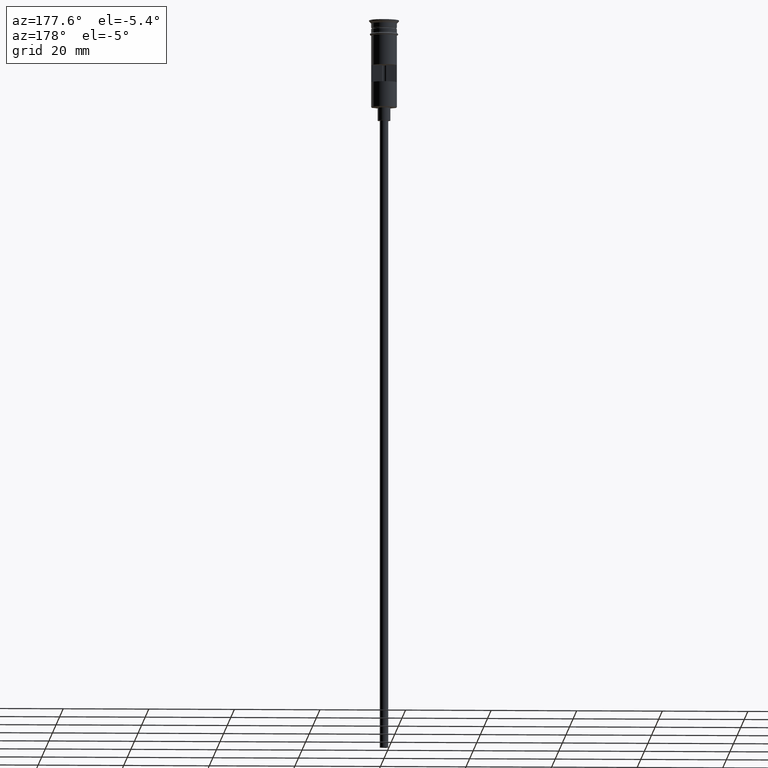
[diagram: clean part render]
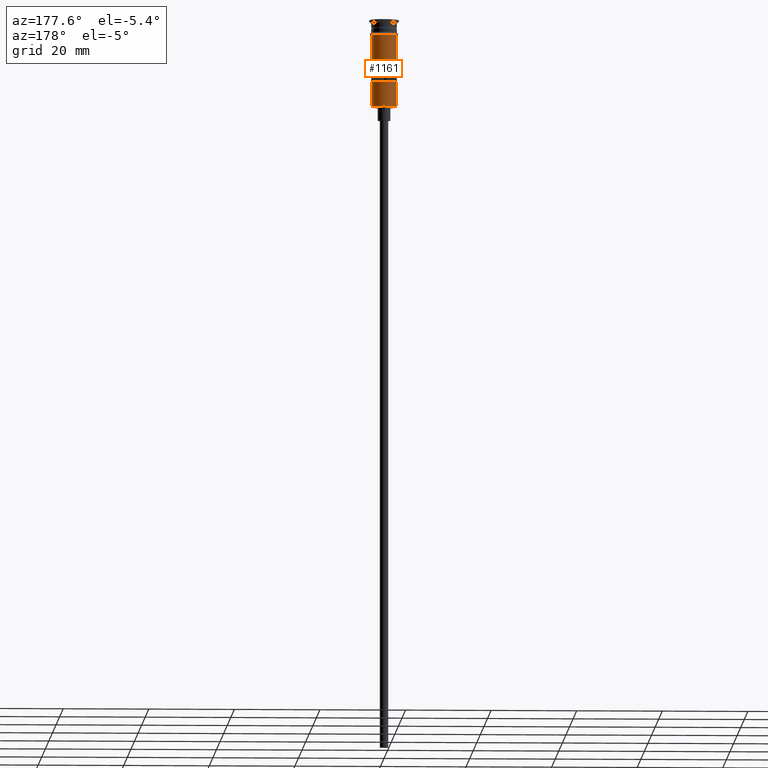
[diagram: same view with one face highlighted and labeled with its STEP entity id]
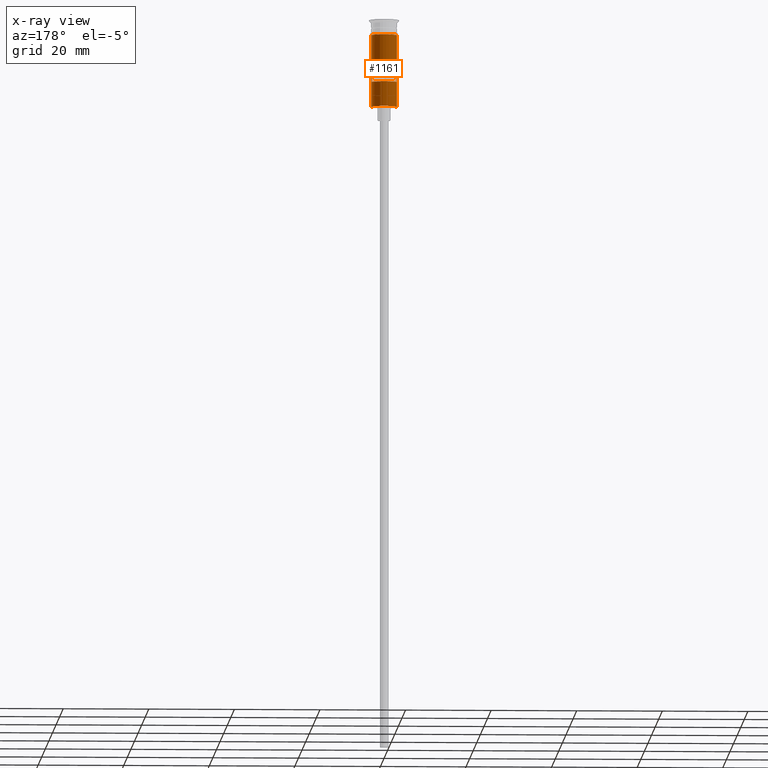
[diagram: x-ray of the same camera — body ghosted, the highlighted face saturated]
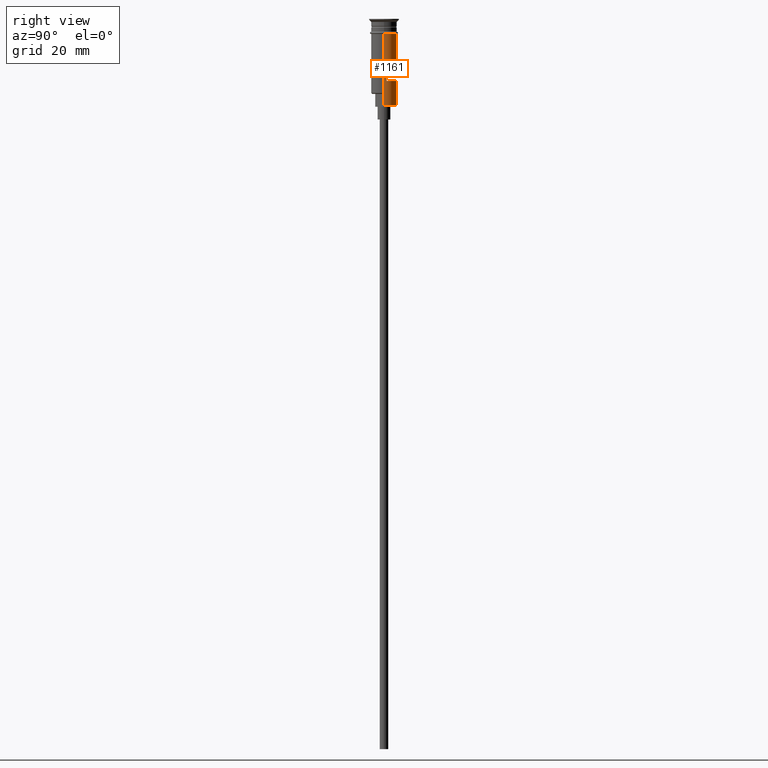
[diagram: same view with one face highlighted and labeled with its STEP entity id]
A machine part, auxiliary view. The second image highlights one B-rep face of the part: STEP entity #1161.
The next image is the same camera in x-ray: the body ghosted, the highlighted face saturated — about 0% of this face is hidden behind the body in this view.
A second angle (right view) of the same face is appended — the face is thin or edge-on in the first view.
In plain terms, the highlighted cylindrical surface (edge-blend (fillet) strip) has radius 3 mm, axis along (-0, -0, 1).
Its self-contained STEP definition (entity closure, byte-faithful):
#2 = AXIS2_PLACEMENT_3D ( 'NONE', #328, #1583, #827 ) ;
#12 = CARTESIAN_POINT ( 'NONE',  ( -2.939387691339810260, 0.5999999999999994227, -10.50000000000000000 ) ) ;
#27 = VECTOR ( 'NONE', #977, 1000.000000000000000 ) ;
#49 = CARTESIAN_POINT ( 'NONE',  ( 2.999999999999995115, 3.673940397442053952E-16, -20.29999999999995808 ) ) ;
#62 = CARTESIAN_POINT ( 'NONE',  ( 0.000000000000000000, 0.000000000000000000, -3.499999999999998668 ) ) ;
#67 = DIRECTION ( 'NONE',  ( 1.000000000000000000, 0.000000000000000000, 0.000000000000000000 ) ) ;
#103 = VERTEX_POINT ( 'NONE', #1290 ) ;
#106 = DIRECTION ( 'NONE',  ( -1.000000000000000000, 0.000000000000000000, 0.000000000000000000 ) ) ;
#121 = ORIENTED_EDGE ( 'NONE', *, *, #509, .T. ) ;
#141 = LINE ( 'NONE', #640, #157 ) ;
#152 = DIRECTION ( 'NONE',  ( 0.000000000000000000, 0.000000000000000000, -1.000000000000000000 ) ) ;
#157 = VECTOR ( 'NONE', #1520, 1000.000000000000000 ) ;
#169 = CARTESIAN_POINT ( 'NONE',  ( 2.939387691339810260, 0.5999999999999994227, 0.000000000000000000 ) ) ;
#200 = EDGE_LOOP ( 'NONE', ( #121, #1163, #270, #746, #1477, #706 ) ) ;
#218 = EDGE_CURVE ( 'NONE', #1436, #1123, #964, .T. ) ;
#233 = CARTESIAN_POINT ( 'NONE',  ( -2.999999999999996891, 3.673940397442055924E-16, 0.000000000000000000 ) ) ;
#252 = VERTEX_POINT ( 'NONE', #1547 ) ;
#256 = DIRECTION ( 'NONE',  ( -0.000000000000000000, -0.000000000000000000, 1.000000000000000000 ) ) ;
#270 = ORIENTED_EDGE ( 'NONE', *, *, #472, .F. ) ;
#277 = LINE ( 'NONE', #1115, #1535 ) ;
#294 = DIRECTION ( 'NONE',  ( -0.000000000000000000, -0.000000000000000000, 1.000000000000000000 ) ) ;
#326 = VERTEX_POINT ( 'NONE', #1182 ) ;
#328 = CARTESIAN_POINT ( 'NONE',  ( 0.000000000000000000, 0.000000000000000000, -10.50000000000000000 ) ) ;
#368 = FACE_BOUND ( 'NONE', #1338, .T. ) ;
#437 = CARTESIAN_POINT ( 'NONE',  ( 2.939387691339810260, 0.5999999999999994227, -14.50000000000000000 ) ) ;
#442 = CIRCLE ( 'NONE', #837, 2.999999999999998668 ) ;
#472 = EDGE_CURVE ( 'NONE', #326, #103, #442, .T. ) ;
#478 = CARTESIAN_POINT ( 'NONE',  ( -2.999999999999995115, 0.000000000000000000, -20.50000000000000000 ) ) ;
#496 = LINE ( 'NONE', #233, #704 ) ;
#509 = EDGE_CURVE ( 'NONE', #1019, #252, #1597, .T. ) ;
#512 = FACE_OUTER_BOUND ( 'NONE', #200, .T. ) ;
#584 = EDGE_CURVE ( 'NONE', #841, #1019, #1095, .T. ) ;
#609 = DIRECTION ( 'NONE',  ( -0.000000000000000000, -0.000000000000000000, 1.000000000000000000 ) ) ;
#614 = DIRECTION ( 'NONE',  ( 0.000000000000000000, 0.000000000000000000, 1.000000000000000000 ) ) ;
#640 = CARTESIAN_POINT ( 'NONE',  ( 2.999999999999996891, 0.000000000000000000, 0.000000000000000000 ) ) ;
#704 = VECTOR ( 'NONE', #609, 1000.000000000000000 ) ;
#706 = ORIENTED_EDGE ( 'NONE', *, *, #584, .T. ) ;
#746 = ORIENTED_EDGE ( 'NONE', *, *, #767, .F. ) ;
#767 = EDGE_CURVE ( 'NONE', #894, #326, #141, .T. ) ;
#773 = ORIENTED_EDGE ( 'NONE', *, *, #1189, .F. ) ;
#778 = DIRECTION ( 'NONE',  ( -0.000000000000000000, -0.000000000000000000, 1.000000000000000000 ) ) ;
#790 = DIRECTION ( 'NONE',  ( -0.000000000000000000, -0.000000000000000000, 1.000000000000000000 ) ) ;
#804 = EDGE_CURVE ( 'NONE', #1275, #1436, #277, .T. ) ;
#826 = ORIENTED_EDGE ( 'NONE', *, *, #1335, .F. ) ;
#827 = DIRECTION ( 'NONE',  ( 1.000000000000000000, 0.000000000000000000, 0.000000000000000000 ) ) ;
#837 = AXIS2_PLACEMENT_3D ( 'NONE', #62, #294, #67 ) ;
#841 = VERTEX_POINT ( 'NONE', #49 ) ;
#894 = VERTEX_POINT ( 'NONE', #1151 ) ;
#954 = VERTEX_POINT ( 'NONE', #437 ) ;
#964 = CIRCLE ( 'NONE', #2, 2.999999999999996891 ) ;
#977 = DIRECTION ( 'NONE',  ( -0.000000000000000000, -0.000000000000000000, 1.000000000000000000 ) ) ;
#978 = DIRECTION ( 'NONE',  ( 1.000000000000000000, 0.000000000000000000, 0.000000000000000000 ) ) ;
#986 = CIRCLE ( 'NONE', #1398, 2.999999999999996891 ) ;
#1008 = CYLINDRICAL_SURFACE ( 'NONE', #1403, 2.999999999999996891 ) ;
#1019 = VERTEX_POINT ( 'NONE', #1058 ) ;
#1027 = EDGE_CURVE ( 'NONE', #841, #894, #1523, .T. ) ;
#1058 = CARTESIAN_POINT ( 'NONE',  ( -2.999999999999995115, 0.000000000000000000, -20.29999999999995808 ) ) ;
#1095 = CIRCLE ( 'NONE', #1296, 2.999999999999996891 ) ;
#1115 = CARTESIAN_POINT ( 'NONE',  ( -2.939387691339810260, 0.5999999999999994227, 0.000000000000000000 ) ) ;
#1123 = VERTEX_POINT ( 'NONE', #1304 ) ;
#1124 = VECTOR ( 'NONE', #790, 1000.000000000000000 ) ;
#1151 = CARTESIAN_POINT ( 'NONE',  ( 2.999999999999996891, 3.673940397442055924E-16, -17.30000000000000782 ) ) ;
#1161 = ADVANCED_FACE ( 'NONE', ( #368, #512 ), #1008, .T. ) ;
#1163 = ORIENTED_EDGE ( 'NONE', *, *, #1263, .T. ) ;
#1182 = CARTESIAN_POINT ( 'NONE',  ( 2.999999999999998668, 0.000000000000000000, -3.499999999999998668 ) ) ;
#1189 = EDGE_CURVE ( 'NONE', #954, #1275, #986, .T. ) ;
#1208 = ORIENTED_EDGE ( 'NONE', *, *, #804, .F. ) ;
#1231 = DIRECTION ( 'NONE',  ( -1.000000000000000000, 0.000000000000000000, 0.000000000000000000 ) ) ;
#1236 = CARTESIAN_POINT ( 'NONE',  ( 0.000000000000000000, 0.000000000000000000, 0.000000000000000000 ) ) ;
#1244 = CARTESIAN_POINT ( 'NONE',  ( 0.000000000000000000, 0.000000000000000000, -14.50000000000000000 ) ) ;
#1263 = EDGE_CURVE ( 'NONE', #252, #103, #496, .T. ) ;
#1274 = VECTOR ( 'NONE', #152, 1000.000000000000000 ) ;
#1275 = VERTEX_POINT ( 'NONE', #1369 ) ;
#1290 = CARTESIAN_POINT ( 'NONE',  ( -2.999999999999999112, 3.673940397442058389E-16, -3.499999999999998668 ) ) ;
#1296 = AXIS2_PLACEMENT_3D ( 'NONE', #1340, #1458, #106 ) ;
#1304 = CARTESIAN_POINT ( 'NONE',  ( 2.939387691339810260, 0.5999999999999994227, -10.50000000000000000 ) ) ;
#1335 = EDGE_CURVE ( 'NONE', #1123, #954, #1515, .T. ) ;
#1338 = EDGE_LOOP ( 'NONE', ( #826, #1580, #1208, #773 ) ) ;
#1340 = CARTESIAN_POINT ( 'NONE',  ( 0.000000000000000000, 0.000000000000000000, -20.29999999999995808 ) ) ;
#1369 = CARTESIAN_POINT ( 'NONE',  ( -2.939387691339810260, 0.5999999999999994227, -14.50000000000000000 ) ) ;
#1398 = AXIS2_PLACEMENT_3D ( 'NONE', #1244, #614, #1231 ) ;
#1403 = AXIS2_PLACEMENT_3D ( 'NONE', #1236, #256, #978 ) ;
#1436 = VERTEX_POINT ( 'NONE', #12 ) ;
#1458 = DIRECTION ( 'NONE',  ( 0.000000000000000000, 0.000000000000000000, 1.000000000000000000 ) ) ;
#1477 = ORIENTED_EDGE ( 'NONE', *, *, #1027, .F. ) ;
#1515 = LINE ( 'NONE', #169, #1274 ) ;
#1520 = DIRECTION ( 'NONE',  ( -0.000000000000000000, -0.000000000000000000, 1.000000000000000000 ) ) ;
#1523 = LINE ( 'NONE', #1550, #1124 ) ;
#1535 = VECTOR ( 'NONE', #778, 1000.000000000000000 ) ;
#1547 = CARTESIAN_POINT ( 'NONE',  ( -2.999999999999995115, 0.000000000000000000, -17.30000000000000782 ) ) ;
#1550 = CARTESIAN_POINT ( 'NONE',  ( 2.999999999999995115, 3.673940397442053952E-16, -20.50000000000000000 ) ) ;
#1580 = ORIENTED_EDGE ( 'NONE', *, *, #218, .F. ) ;
#1583 = DIRECTION ( 'NONE',  ( -0.000000000000000000, 0.000000000000000000, -1.000000000000000000 ) ) ;
#1597 = LINE ( 'NONE', #478, #27 ) ;